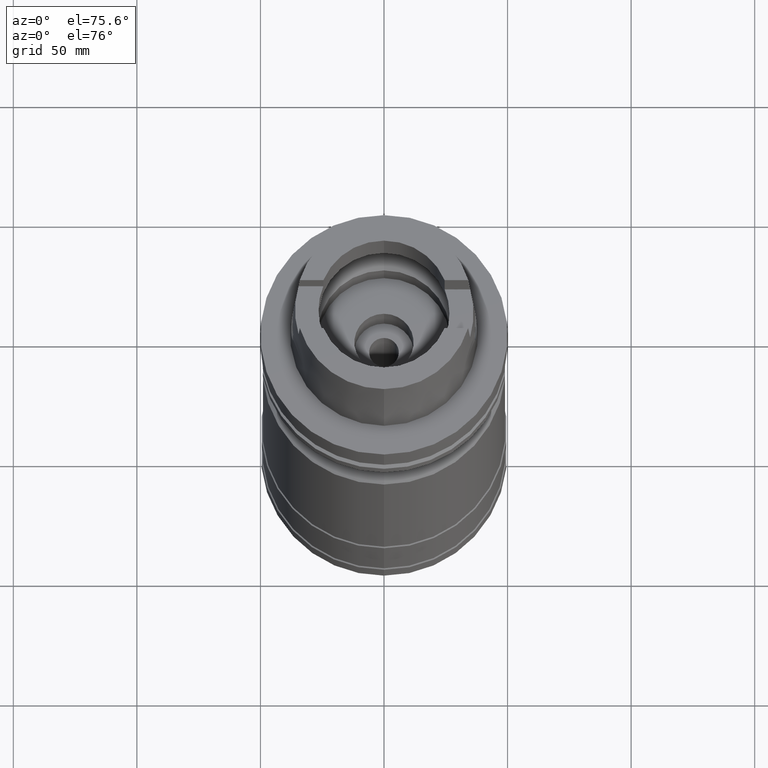
[diagram: clean part render]
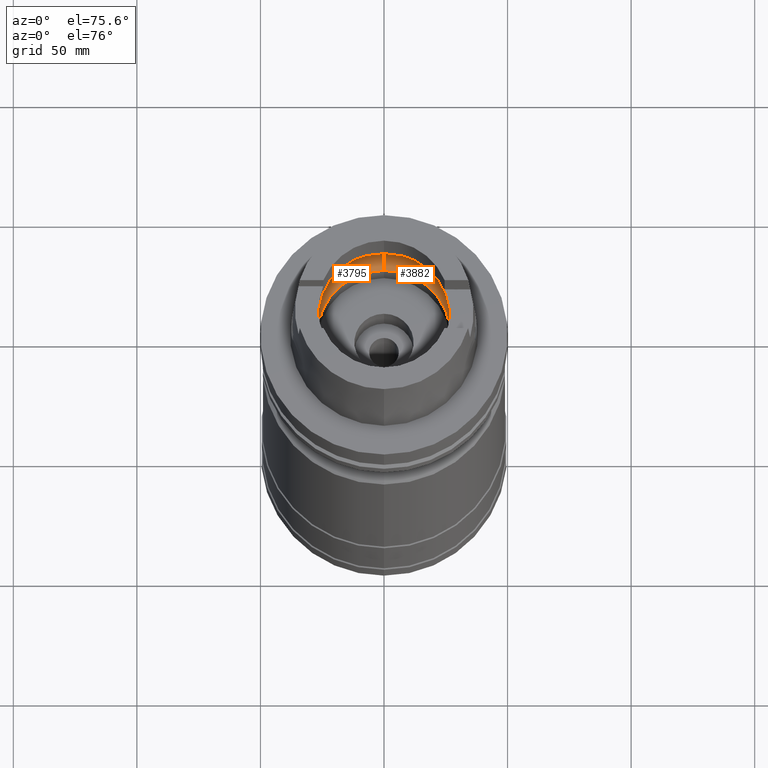
[diagram: same view with one multi-face feature highlighted, each face labeled with its STEP entity id]
A machine part, auxiliary view. The highlighted faces form ONE feature: a constant-radius fillet chain: 2 tangent blend faces with common blend radius 12 mm. The faces share edges in the B-rep.
Their STEP definitions:
[1] entity #3795 (Torus):
#1834=CARTESIAN_POINT('',(-3.140918884336E1,-2.390158196044E0,
9.496624327026E0));
#1835=CARTESIAN_POINT('',(-3.142817848467E1,-2.140614366329E0,
9.388245530937E0));
#1836=CARTESIAN_POINT('',(-3.145843724500E1,-1.626023551083E0,
9.205156904102E0));
#1837=CARTESIAN_POINT('',(-3.148416960718E1,-8.214762204955E-1,
9.037587027959E0));
#1838=CARTESIAN_POINT('',(-3.148971910754E1,-2.740162681909E-1,9.E0));
#1839=CARTESIAN_POINT('',(-3.148971910754E1,0.E0,9.E0));
#1844=CARTESIAN_POINT('',(-3.148971910754E1,0.E0,9.E0));
#1845=CARTESIAN_POINT('',(-3.148971910754E1,2.740165669665E-1,9.E0));
#1846=CARTESIAN_POINT('',(-3.148416962018E1,8.214769982256E-1,
9.037586954605E0));
#1847=CARTESIAN_POINT('',(-3.145843702194E1,1.626028819033E0,9.205158323105E0));
#1848=CARTESIAN_POINT('',(-3.142817832063E1,2.140616521958E0,9.388246467142E0));
#1849=CARTESIAN_POINT('',(-3.140918884336E1,2.390158196044E0,9.496624327026E0));
#1854=CARTESIAN_POINT('',(0.E0,0.E0,9.496624327026E0));
#1855=DIRECTION('',(0.E0,0.E0,-1.E0));
#1856=DIRECTION('',(-9.971171061384E-1,7.587803796965E-2,0.E0));
#1857=AXIS2_PLACEMENT_3D('',#1854,#1855,#1856);
#1862=CARTESIAN_POINT('',(0.E0,0.E0,4.993178413031E-2));
#1863=DIRECTION('',(0.E0,0.E0,1.E0));
#1864=DIRECTION('',(0.E0,1.E0,0.E0));
#1865=AXIS2_PLACEMENT_3D('',#1862,#1863,#1864);
#1870=CARTESIAN_POINT('',(0.E0,-1.95E1,9.496624327026E0));
#1871=DIRECTION('',(-1.E0,0.E0,0.E0));
#1872=DIRECTION('',(0.E0,-6.166666666667E-1,-7.872243785746E-1));
#1873=AXIS2_PLACEMENT_3D('',#1870,#1871,#1872);
#1878=CARTESIAN_POINT('',(0.E0,0.E0,9.496624327026E0));
#1879=DIRECTION('',(0.E0,0.E0,-1.E0));
#1880=DIRECTION('',(0.E0,-1.E0,0.E0));
#1881=AXIS2_PLACEMENT_3D('',#1878,#1879,#1880);
#2008=CARTESIAN_POINT('',(0.E0,1.95E1,9.496624327026E0));
#2009=DIRECTION('',(1.E0,0.E0,0.E0));
#2010=DIRECTION('',(0.E0,6.166666666667E-1,-7.872243785746E-1));
#2011=AXIS2_PLACEMENT_3D('',#2008,#2009,#2010);
#2290=CARTESIAN_POINT('',(0.E0,2.69E1,4.993178413033E-2));
#2291=VERTEX_POINT('',#2290);
#2292=CARTESIAN_POINT('',(0.E0,-2.69E1,4.993178413030E-2));
#2293=VERTEX_POINT('',#2292);
#2294=VERTEX_POINT('',#1834);
#2295=VERTEX_POINT('',#1839);
#2296=VERTEX_POINT('',#1849);
#2297=CARTESIAN_POINT('',(0.E0,3.15E1,9.496624327026E0));
#2298=VERTEX_POINT('',#2297);
#2299=CARTESIAN_POINT('',(0.E0,-3.15E1,9.496624327026E0));
#2300=VERTEX_POINT('',#2299);
#3775=CARTESIAN_POINT('',(0.E0,0.E0,9.496624327026E0));
#3776=DIRECTION('',(0.E0,0.E0,1.E0));
#3777=DIRECTION('',(0.E0,1.E0,0.E0));
#3778=AXIS2_PLACEMENT_3D('',#3775,#3776,#3777);
#3779=TOROIDAL_SURFACE('',#3778,1.95E1,1.2E1);
#3781=ORIENTED_EDGE('',*,*,#3780,.T.);
#3783=ORIENTED_EDGE('',*,*,#3782,.T.);
#3785=ORIENTED_EDGE('',*,*,#3784,.T.);
#3787=ORIENTED_EDGE('',*,*,#3786,.F.);
#3788=ORIENTED_EDGE('',*,*,#3770,.T.);
#3790=ORIENTED_EDGE('',*,*,#3789,.T.);
#3792=ORIENTED_EDGE('',*,*,#3791,.T.);
#3793=EDGE_LOOP('',(#3781,#3783,#3785,#3787,#3788,#3790,#3792));
#3794=FACE_OUTER_BOUND('',#3793,.F.);
#1840=B_SPLINE_CURVE_WITH_KNOTS('',3,(#1834,#1835,#1836,#1837,#1838,#1839),
.UNSPECIFIED.,.F.,.F.,(4,1,1,4),(0.E0,3.333333333333E-1,6.666666666667E-1,1.E0),
.UNSPECIFIED.);
#1850=B_SPLINE_CURVE_WITH_KNOTS('',3,(#1844,#1845,#1846,#1847,#1848,#1849),
.UNSPECIFIED.,.F.,.F.,(4,1,1,4),(0.E0,3.333333333333E-1,6.666666666667E-1,1.E0),
.UNSPECIFIED.);
#1858=CIRCLE('',#1857,3.15E1);
#1866=CIRCLE('',#1865,2.69E1);
#1874=CIRCLE('',#1873,1.2E1);
#1882=CIRCLE('',#1881,3.15E1);
#2012=CIRCLE('',#2011,1.2E1);
#3770=EDGE_CURVE('',#2291,#2293,#1866,.T.);
#3780=EDGE_CURVE('',#2294,#2295,#1840,.T.);
#3782=EDGE_CURVE('',#2295,#2296,#1850,.T.);
#3784=EDGE_CURVE('',#2296,#2298,#1858,.T.);
#3786=EDGE_CURVE('',#2291,#2298,#2012,.T.);
#3789=EDGE_CURVE('',#2293,#2300,#1874,.T.);
#3791=EDGE_CURVE('',#2300,#2294,#1882,.T.);
#3795=ADVANCED_FACE('',(#3794),#3779,.F.);
[2] entity #3882 (Torus):
#1870=CARTESIAN_POINT('',(0.E0,-1.95E1,9.496624327026E0));
#1871=DIRECTION('',(-1.E0,0.E0,0.E0));
#1872=DIRECTION('',(0.E0,-6.166666666667E-1,-7.872243785746E-1));
#1873=AXIS2_PLACEMENT_3D('',#1870,#1871,#1872);
#1934=CARTESIAN_POINT('',(3.140918884336E1,-2.390158196044E0,9.496624327026E0));
#1963=CARTESIAN_POINT('',(3.140918884336E1,2.390158196044E0,9.496624327026E0));
#1982=CARTESIAN_POINT('',(3.148971910754E1,0.E0,9.E0));
#1983=CARTESIAN_POINT('',(3.148971910754E1,-2.740169050541E-1,9.E0));
#1984=CARTESIAN_POINT('',(3.148416957998E1,-8.214776976887E-1,
9.037587211562E0));
#1985=CARTESIAN_POINT('',(3.145843718743E1,-1.626024717401E0,9.205157265854E0));
#1986=CARTESIAN_POINT('',(3.142817844845E1,-2.140614842228E0,9.388245737623E0));
#1987=CARTESIAN_POINT('',(3.140918884336E1,-2.390158196044E0,9.496624327026E0));
#1992=CARTESIAN_POINT('',(0.E0,0.E0,9.496624327026E0));
#1993=DIRECTION('',(0.E0,0.E0,-1.E0));
#1994=DIRECTION('',(9.971171061384E-1,-7.587803796965E-2,0.E0));
#1995=AXIS2_PLACEMENT_3D('',#1992,#1993,#1994);
#2000=CARTESIAN_POINT('',(0.E0,0.E0,4.993178413030E-2));
#2001=DIRECTION('',(0.E0,0.E0,1.E0));
#2002=DIRECTION('',(0.E0,-1.E0,0.E0));
#2003=AXIS2_PLACEMENT_3D('',#2000,#2001,#2002);
#2008=CARTESIAN_POINT('',(0.E0,1.95E1,9.496624327026E0));
#2009=DIRECTION('',(1.E0,0.E0,0.E0));
#2010=DIRECTION('',(0.E0,6.166666666667E-1,-7.872243785746E-1));
#2011=AXIS2_PLACEMENT_3D('',#2008,#2009,#2010);
#2016=CARTESIAN_POINT('',(0.E0,0.E0,9.496624327026E0));
#2017=DIRECTION('',(0.E0,0.E0,-1.E0));
#2018=DIRECTION('',(0.E0,1.E0,0.E0));
#2019=AXIS2_PLACEMENT_3D('',#2016,#2017,#2018);
#2024=CARTESIAN_POINT('',(3.140918884336E1,2.390158196044E0,9.496624327026E0));
#2025=CARTESIAN_POINT('',(3.142817835740E1,2.140616038809E0,9.388246257307E0));
#2026=CARTESIAN_POINT('',(3.145843708024E1,1.626027635001E0,9.205157956654E0));
#2027=CARTESIAN_POINT('',(3.148416964729E1,8.214755204284E-1,9.037586771557E0));
#2028=CARTESIAN_POINT('',(3.148971910754E1,2.740159299782E-1,9.E0));
#2029=CARTESIAN_POINT('',(3.148971910754E1,0.E0,9.E0));
#2290=CARTESIAN_POINT('',(0.E0,2.69E1,4.993178413033E-2));
#2291=VERTEX_POINT('',#2290);
#2292=CARTESIAN_POINT('',(0.E0,-2.69E1,4.993178413030E-2));
#2293=VERTEX_POINT('',#2292);
#2297=CARTESIAN_POINT('',(0.E0,3.15E1,9.496624327026E0));
#2298=VERTEX_POINT('',#2297);
#2299=CARTESIAN_POINT('',(0.E0,-3.15E1,9.496624327026E0));
#2300=VERTEX_POINT('',#2299);
#2302=VERTEX_POINT('',#1934);
#2304=VERTEX_POINT('',#1982);
#2309=VERTEX_POINT('',#1963);
#3867=CARTESIAN_POINT('',(0.E0,0.E0,9.496624327026E0));
#3868=DIRECTION('',(0.E0,0.E0,1.E0));
#3869=DIRECTION('',(0.E0,1.E0,0.E0));
#3870=AXIS2_PLACEMENT_3D('',#3867,#3868,#3869);
#3871=TOROIDAL_SURFACE('',#3870,1.95E1,1.2E1);
#3872=ORIENTED_EDGE('',*,*,#3857,.T.);
#3873=ORIENTED_EDGE('',*,*,#3846,.T.);
#3874=ORIENTED_EDGE('',*,*,#3789,.F.);
#3875=ORIENTED_EDGE('',*,*,#3754,.T.);
#3876=ORIENTED_EDGE('',*,*,#3786,.T.);
#3877=ORIENTED_EDGE('',*,*,#3840,.T.);
#3879=ORIENTED_EDGE('',*,*,#3878,.T.);
#3880=EDGE_LOOP('',(#3872,#3873,#3874,#3875,#3876,#3877,#3879));
#3881=FACE_OUTER_BOUND('',#3880,.F.);
#1874=CIRCLE('',#1873,1.2E1);
#1988=B_SPLINE_CURVE_WITH_KNOTS('',3,(#1982,#1983,#1984,#1985,#1986,#1987),
.UNSPECIFIED.,.F.,.F.,(4,1,1,4),(0.E0,3.333333333333E-1,6.666666666667E-1,1.E0),
.UNSPECIFIED.);
#1996=CIRCLE('',#1995,3.15E1);
#2004=CIRCLE('',#2003,2.69E1);
#2012=CIRCLE('',#2011,1.2E1);
#2020=CIRCLE('',#2019,3.15E1);
#2030=B_SPLINE_CURVE_WITH_KNOTS('',3,(#2024,#2025,#2026,#2027,#2028,#2029),
.UNSPECIFIED.,.F.,.F.,(4,1,1,4),(0.E0,3.333333333333E-1,6.666666666667E-1,1.E0),
.UNSPECIFIED.);
#3754=EDGE_CURVE('',#2293,#2291,#2004,.T.);
#3786=EDGE_CURVE('',#2291,#2298,#2012,.T.);
#3789=EDGE_CURVE('',#2293,#2300,#1874,.T.);
#3840=EDGE_CURVE('',#2298,#2309,#2020,.T.);
#3846=EDGE_CURVE('',#2302,#2300,#1996,.T.);
#3857=EDGE_CURVE('',#2304,#2302,#1988,.T.);
#3878=EDGE_CURVE('',#2309,#2304,#2030,.T.);
#3882=ADVANCED_FACE('',(#3881),#3871,.F.);